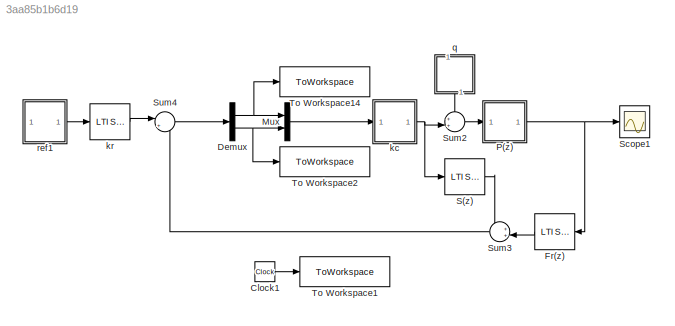
MODEL slx_3aa85b1b6d19
KIND model
CONFIG AbsTol = auto
CONFIG EnableMultiTasking = off
CONFIG FixedStep = auto
CONFIG MaxStep = auto
CONFIG MinStep = auto
CONFIG RelTol = 1e-4
CONFIG SampleTimeConstraint = Unconstrained
CONFIG SolverName = VariableStepAuto
CONFIG StartTime = 0.0
CONFIG StopTime = Tsim
BLOCK [Clock] Clock1
BLOCK [Demux] Demux
  Outputs = 2
BLOCK [Reference] Fr(z)  REF=cstblocks/LTI System
  SourceBlock = cstblocks/LTI System
  SourceType = LTI Block
BLOCK [Mux] Mux
  DisplayOption = bar
  Inputs = 2
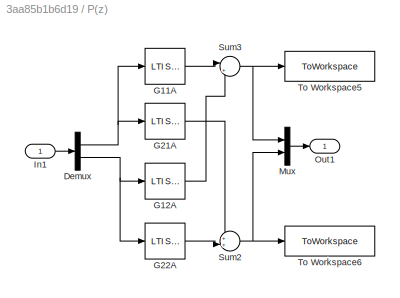
BLOCK [SubSystem] P(z)
BLOCK [Demux] P(z)/Demux
  Outputs = 2
BLOCK [Reference] P(z)/G11A  REF=cstblocks/LTI System
  SourceBlock = cstblocks/LTI System
  SourceType = LTI Block
BLOCK [Reference] P(z)/G12A  REF=cstblocks/LTI System
  SourceBlock = cstblocks/LTI System
  SourceType = LTI Block
BLOCK [Reference] P(z)/G21A  REF=cstblocks/LTI System
  SourceBlock = cstblocks/LTI System
  SourceType = LTI Block
BLOCK [Reference] P(z)/G22A  REF=cstblocks/LTI System
  SourceBlock = cstblocks/LTI System
  SourceType = LTI Block
BLOCK [Inport] P(z)/In1
BLOCK [Mux] P(z)/Mux
  DisplayOption = bar
  Inputs = 2
BLOCK [Outport] P(z)/Out1
BLOCK [Sum] P(z)/Sum2
  Inputs = ++|
BLOCK [Sum] P(z)/Sum3
  Inputs = |++
BLOCK [ToWorkspace] P(z)/To Workspace5
  FixptAsFi = on
  MaxDataPoints = inf
  SampleTime = Ts
  VariableName = y1A
BLOCK [ToWorkspace] P(z)/To Workspace6
  FixptAsFi = on
  MaxDataPoints = inf
  SampleTime = Ts
  VariableName = y2A
BLOCK [Reference] S(z)  REF=cstblocks/LTI System
  SourceBlock = cstblocks/LTI System
  SourceType = LTI Block
BLOCK [Scope] Scope1
  Floating = off
  NumInputPorts = 1
  ScopeSpecificationString = Simulink.scopes.TimeScopeBlockCfg('CurrentConfiguration', extmgr.ConfigurationSet(extmgr.Configuration('Core','General UI',true),extmgr.Configuration('Core','Source UI',true),extmgr.Configuration('Sources','WiredSimulink',true,'DataLoggingVariableName','ScopeData1'),extmgr.Configuration('Visuals','Time Domain',true,'SerializedDisplays',{struct('MinYLimReal','-64690693741082207333639628165603760537...<+1735ch>
BLOCK [Sum] Sum2
  Inputs = ++|
  NameLocation = top
BLOCK [Sum] Sum3
  Inputs = ++|
  NameLocation = top
BLOCK [Sum] Sum4
  Inputs = |+-
BLOCK [ToWorkspace] To Workspace1
  FixptAsFi = on
  MaxDataPoints = inf
  SampleTime = Ts
  VariableName = cpi_time
BLOCK [ToWorkspace] To Workspace14
  FixptAsFi = on
  MaxDataPoints = inf
  SampleTime = Ts
  VariableName = e1
BLOCK [ToWorkspace] To Workspace2
  FixptAsFi = on
  MaxDataPoints = inf
  SampleTime = Ts
  VariableName = e2
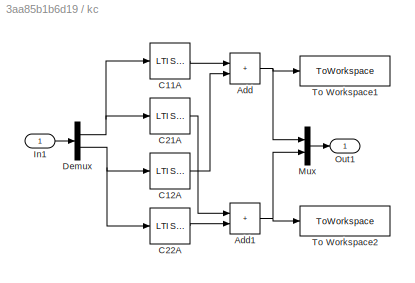
BLOCK [SubSystem] kc
BLOCK [Sum] kc/Add
  IconShape = rectangular
BLOCK [Sum] kc/Add1
  IconShape = rectangular
BLOCK [Reference] kc/C11A  REF=cstblocks/LTI System
  SourceBlock = cstblocks/LTI System
  SourceType = LTI Block
BLOCK [Reference] kc/C12A  REF=cstblocks/LTI System
  SourceBlock = cstblocks/LTI System
  SourceType = LTI Block
BLOCK [Reference] kc/C21A  REF=cstblocks/LTI System
  SourceBlock = cstblocks/LTI System
  SourceType = LTI Block
BLOCK [Reference] kc/C22A  REF=cstblocks/LTI System
  SourceBlock = cstblocks/LTI System
  SourceType = LTI Block
BLOCK [Demux] kc/Demux
  Outputs = 2
BLOCK [Inport] kc/In1
BLOCK [Mux] kc/Mux
  DisplayOption = bar
  Inputs = 2
BLOCK [Outport] kc/Out1
BLOCK [ToWorkspace] kc/To Workspace1
  FixptAsFi = on
  MaxDataPoints = inf
  SampleTime = Ts
  VariableName = cSignal1A
BLOCK [ToWorkspace] kc/To Workspace2
  FixptAsFi = on
  MaxDataPoints = inf
  SampleTime = Ts
  VariableName = cSignal2A
BLOCK [Reference] kr  REF=cstblocks/LTI System
  SourceBlock = cstblocks/LTI System
  SourceType = LTI Block
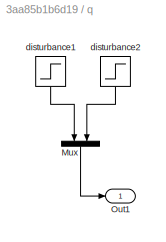
BLOCK [SubSystem] q
  NameLocation = left
BLOCK [Mux] q/Mux
  DisplayOption = bar
  Inputs = 2
  NameLocation = left
BLOCK [Outport] q/Out1
BLOCK [Step] q/disturbance1
  After = finalDisturbance1Value
  Before = initialDisturbance1Value
  NameLocation = top
  SampleTime = Ts
  Time = Tref1
BLOCK [Step] q/disturbance2
  After = finalDisturbance2Value
  Before = initialDisturbance2Value
  NameLocation = top
  SampleTime = Ts
  Time = Tref2
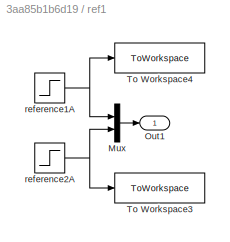
BLOCK [SubSystem] ref1
BLOCK [Mux] ref1/Mux
  DisplayOption = bar
  Inputs = 2
BLOCK [Outport] ref1/Out1
BLOCK [ToWorkspace] ref1/To Workspace3
  FixptAsFi = on
  MaxDataPoints = inf
  SampleTime = Ts
  VariableName = u2
BLOCK [ToWorkspace] ref1/To Workspace4
  FixptAsFi = on
  MaxDataPoints = inf
  SampleTime = Ts
  VariableName = u1
BLOCK [Step] ref1/reference1A
  After = finalReference1Value
  Before = initialReference1Value
  SampleTime = Ts
  Time = Tref1
BLOCK [Step] ref1/reference2A
  After = finalReference2Value
  Before = initialReference2Value
  SampleTime = Ts
  Time = Tref2
LINE Clock1:1 -> To Workspace1:1
NET Demux:1 -> Mux:1, To Workspace14:1
NET Demux:2 -> Mux:2, To Workspace2:1
LINE Fr(z):1 -> Sum3:2
LINE Mux:1 -> kc:1
NET P(z)/Demux:1 -> P(z)/G11A:1, P(z)/G21A:1
NET P(z)/Demux:2 -> P(z)/G12A:1, P(z)/G22A:1
LINE P(z)/G11A:1 -> P(z)/Sum3:1
LINE P(z)/G12A:1 -> P(z)/Sum3:2
LINE P(z)/G21A:1 -> P(z)/Sum2:1
LINE P(z)/G22A:1 -> P(z)/Sum2:2
LINE P(z)/In1:1 -> P(z)/Demux:1
LINE P(z)/Mux:1 -> P(z)/Out1:1
NET P(z)/Sum2:1 -> P(z)/Mux:2, P(z)/To Workspace6:1
NET P(z)/Sum3:1 -> P(z)/Mux:1, P(z)/To Workspace5:1
NET P(z):1 -> Fr(z):1, Scope1:1
LINE S(z):1 -> Sum3:1
LINE Sum2:1 -> P(z):1
LINE Sum3:1 -> Sum4:2
LINE Sum4:1 -> Demux:1
NET kc/Add1:1 -> kc/Mux:2, kc/To Workspace2:1
NET kc/Add:1 -> kc/Mux:1, kc/To Workspace1:1
LINE kc/C11A:1 -> kc/Add:1
LINE kc/C12A:1 -> kc/Add:2
LINE kc/C21A:1 -> kc/Add1:1
LINE kc/C22A:1 -> kc/Add1:2
NET kc/Demux:1 -> kc/C11A:1, kc/C21A:1
NET kc/Demux:2 -> kc/C12A:1, kc/C22A:1
LINE kc/In1:1 -> kc/Demux:1
LINE kc/Mux:1 -> kc/Out1:1
NET kc:1 -> S(z):1, Sum2:2
LINE kr:1 -> Sum4:1
LINE q/Mux:1 -> q/Out1:1
LINE q/disturbance1:1 -> q/Mux:1
LINE q/disturbance2:1 -> q/Mux:2
LINE q:1 -> Sum2:1
LINE ref1/Mux:1 -> ref1/Out1:1
NET ref1/reference1A:1 -> ref1/Mux:1, ref1/To Workspace4:1
NET ref1/reference2A:1 -> ref1/Mux:2, ref1/To Workspace3:1
LINE ref1:1 -> kr:1
note: NET lines group one-source signal fan-out (src -> all destinations, sorted); 1:1 wires keep LINE
